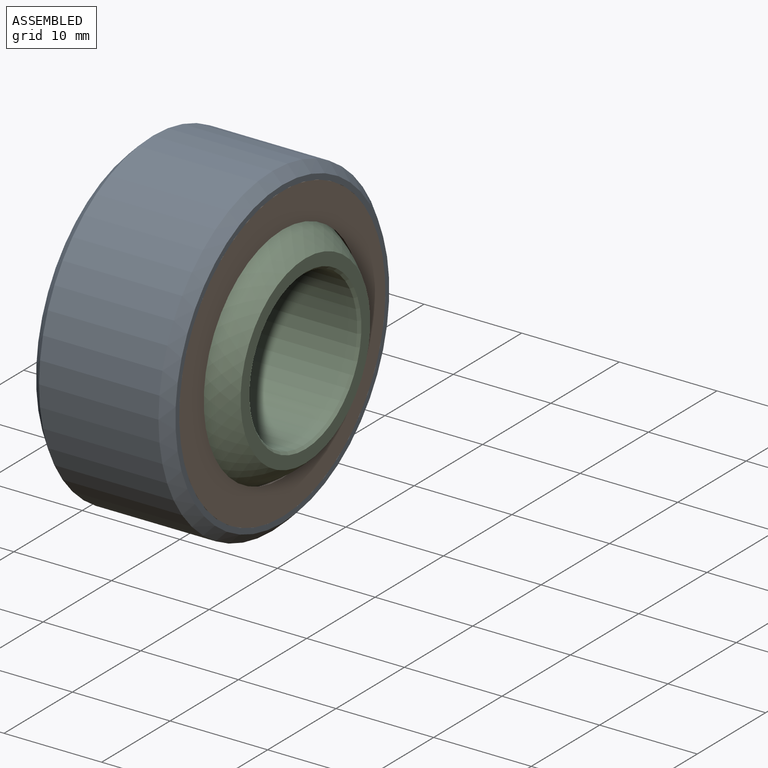
[diagram: assembled view]
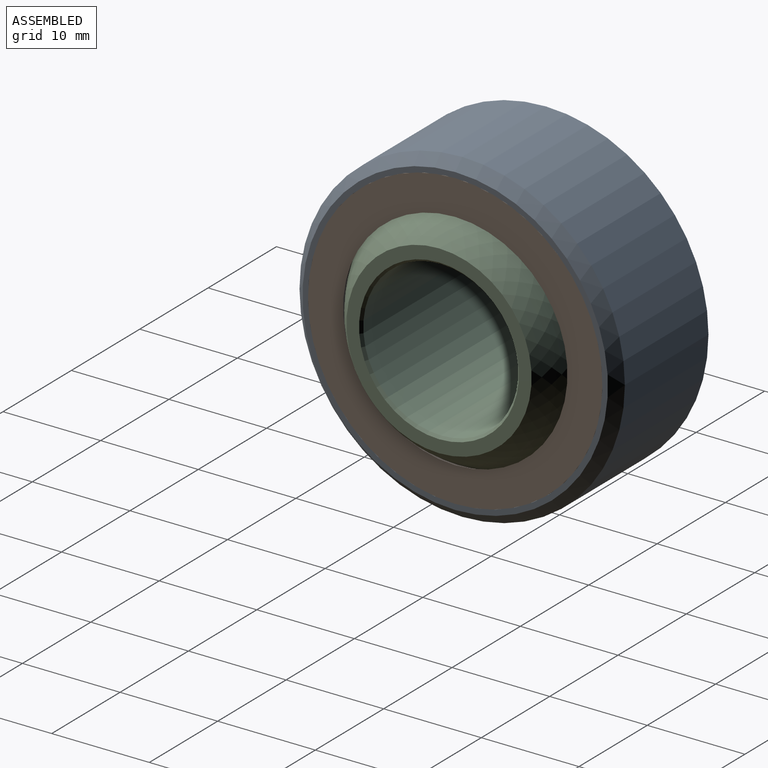
[diagram: assembled view, second angle]
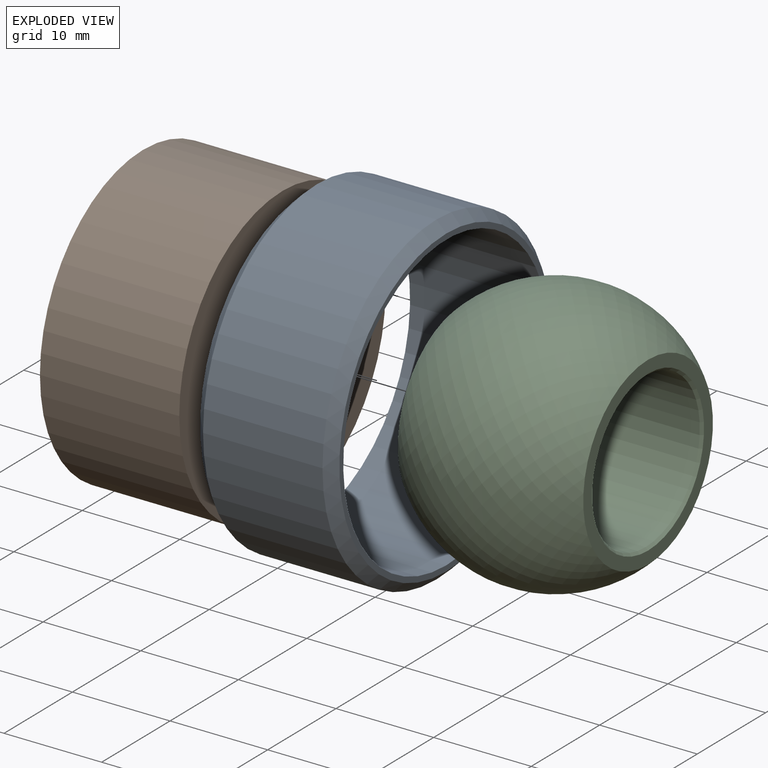
[diagram: exploded view]
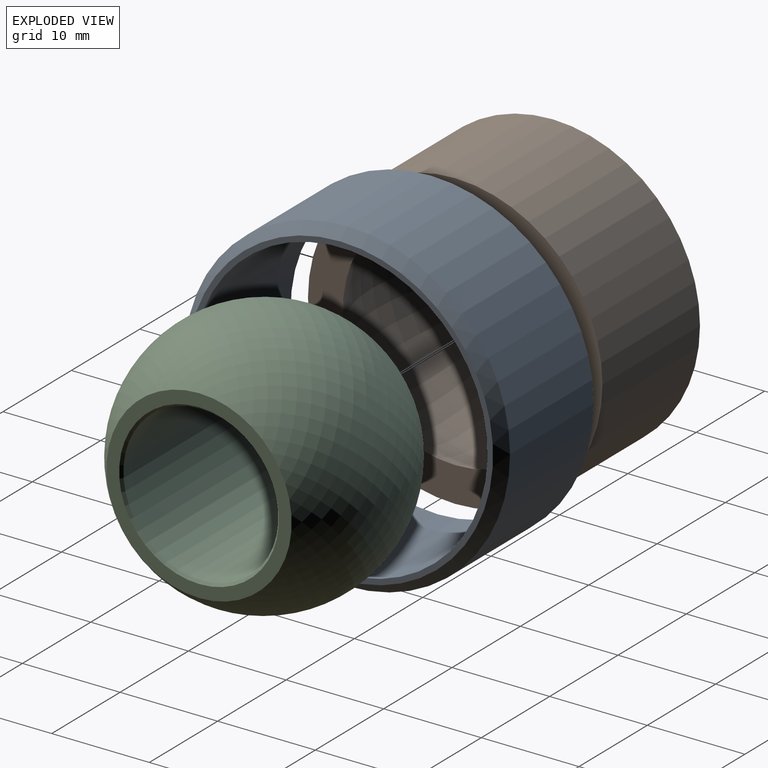
[diagram: exploded view, second angle]
ASSEMBLY  parts=3 mates=2
PART A: 6 faces, bbox 14.3x33.3x33.3 mm
  f0: cylinder r=16.66mm len=33.33mm, axis (1,0,0), area 1280.6mm2, adj f4,f5
  f1: plane 31.29x31.29mm, normal (-1,0,0), area 54.4mm2, adj f2,f4
  f2: cylinder r=15.08mm len=30.16mm, axis (1,0,0), area 1352.2mm2, adj f1,f3
  f3: plane 31.29x31.29mm, normal (1,0,0), area 54.4mm2, adj f2,f5
  f4: cone r=16.66mm half-angle=45deg, axis (1,0,0), area 146.4mm2, adj f0,f1
  f5: cone r=15.64mm half-angle=45deg, axis (-1,0,0), area 146.4mm2, adj f0,f3
PART B: 4 faces, bbox 14.3x30.2x30.2 mm
  f0: plane 30.16x30.16mm, normal (1,0,0), area 299.1mm2, adj f1,f3
  f1: cylinder r=15.08mm len=30.16mm, axis (-1,0,0), area 1352.2mm2, adj f0,f2
  f2: plane 30.16x30.16mm, normal (-1,0,0), area 299.1mm2, adj f1,f3
  f3: torus R=0.06mm, axis (-1,0,0), area 1214.3mm2, adj f0,f2
PART C: 6 faces, bbox 19x26.8x26.8 mm
  f0: revolved ~26.8x26.8mm, area 1598.5mm2, adj f1,f3
  f1: plane 18.97x18.97mm, normal (-1,0,0), area 71.9mm2, adj f0,f4
  f2: cylinder r=7.93mm len=18.49mm, axis (1,0,0), area 921.9mm2, adj f4,f5
  f3: plane 18.97x18.97mm, normal (1,0,0), area 71.9mm2, adj f0,f5
  f4: cone r=8.19mm half-angle=45deg, axis (-1,0,0), area 18.3mm2, adj f1,f2
  f5: cone r=7.93mm half-angle=45deg, axis (1,0,0), area 18.3mm2, adj f2,f3
PLACE A t=(-9.77,-5.52,0.18)mm
PLACE B t=(-9.77,-5.52,0.18)mm fixed
PLACE C t=(-9.77,-5.52,0.18)mm
MATE ball B.f1 <-> C.f2  axis (-1,0,0) through (-9.77,-5.52,0.18)mm
MATE fastened B.f1 <-> A.f0  axis (-1,0,0) through (-9.77,-5.52,0.18)mm
